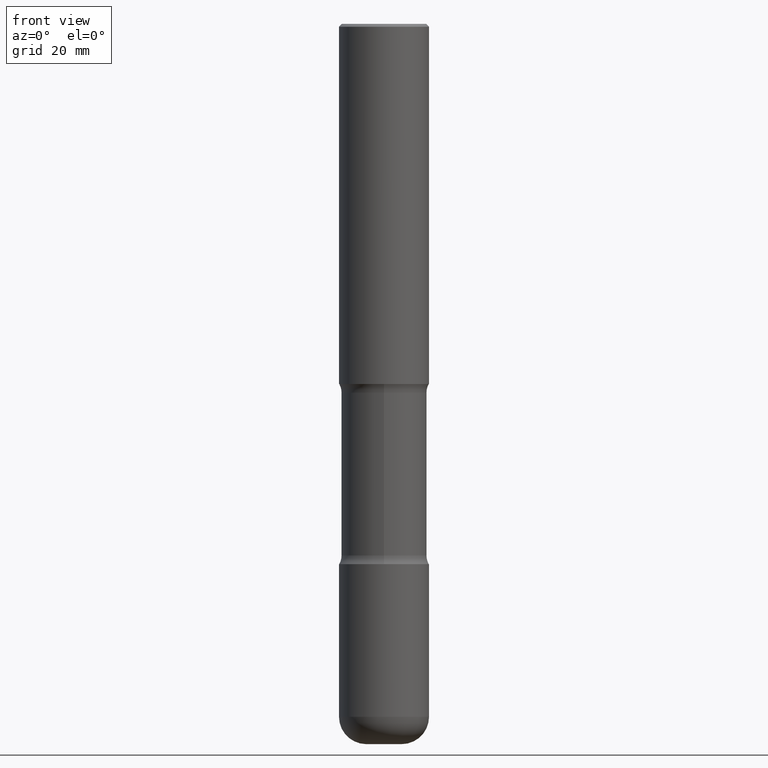
[diagram: clean part render]
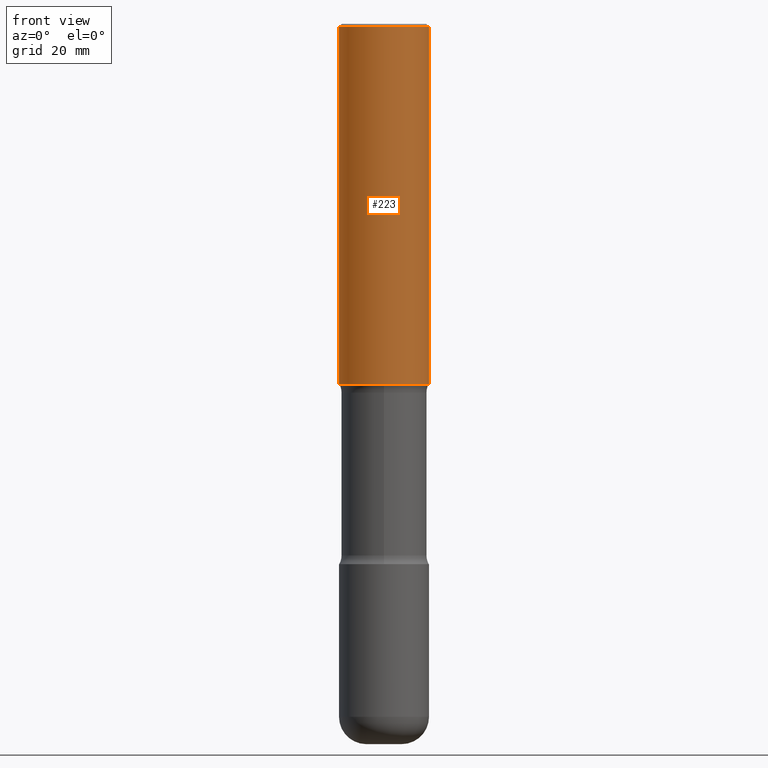
[diagram: same view with one face highlighted and labeled with its STEP entity id]
A machine part, front view. The second image highlights one B-rep face of the part: STEP entity #223.
In plain terms, the highlighted cylindrical surface (partial cylindrical patch) has radius 7.9375 mm, axis along (-0, 0, 1).
Its self-contained STEP definition (entity closure, byte-faithful):
#8 = CARTESIAN_POINT ( 'NONE',  ( 0.3125000000000002220, -1.091087918388482329E-14, -2.499999999999999556 ) ) ;
#36 = AXIS2_PLACEMENT_3D ( 'NONE', #272, #315, #94 ) ;
#61 = VECTOR ( 'NONE', #289, 39.37007874015748143 ) ;
#75 = LINE ( 'NONE', #559, #525 ) ;
#81 = EDGE_LOOP ( 'NONE', ( #132, #401, #228, #243 ) ) ;
#94 = DIRECTION ( 'NONE',  ( 1.000000000000000000, -6.982962677686266711E-15, 0.000000000000000000 ) ) ;
#99 = VERTEX_POINT ( 'NONE', #354 ) ;
#108 = EDGE_CURVE ( 'NONE', #345, #99, #75, .T. ) ;
#114 = LINE ( 'NONE', #125, #61 ) ;
#125 = CARTESIAN_POINT ( 'NONE',  ( 0.3125000000000000000, -2.182175836776958347E-15, 1.523805242436230075E-29 ) ) ;
#132 = ORIENTED_EDGE ( 'NONE', *, *, #108, .F. ) ;
#134 = DIRECTION ( 'NONE',  ( 1.000000000000000000, -6.982962677686266711E-15, 0.000000000000000000 ) ) ;
#137 = EDGE_CURVE ( 'NONE', #99, #165, #346, .T. ) ;
#165 = VERTEX_POINT ( 'NONE', #260 ) ;
#209 = DIRECTION ( 'NONE',  ( -2.445468806185136597E-29, 3.491481338843145583E-15, 1.000000000000000000 ) ) ;
#223 = ADVANCED_FACE ( 'NONE', ( #226 ), #356, .T. ) ;
#226 = FACE_OUTER_BOUND ( 'NONE', #81, .T. ) ;
#228 = ORIENTED_EDGE ( 'NONE', *, *, #488, .T. ) ;
#243 = ORIENTED_EDGE ( 'NONE', *, *, #137, .F. ) ;
#246 = EDGE_CURVE ( 'NONE', #345, #539, #371, .T. ) ;
#257 = AXIS2_PLACEMENT_3D ( 'NONE', #390, #351, #134 ) ;
#260 = CARTESIAN_POINT ( 'NONE',  ( 0.3124999999999998890, -2.213735251080466123E-15, -0.02000000000000006981 ) ) ;
#272 = CARTESIAN_POINT ( 'NONE',  ( 4.890937612370289799E-31, -6.982962677686315028E-17, -0.02000000000000006981 ) ) ;
#289 = DIRECTION ( 'NONE',  ( -2.445468806185136877E-29, 3.491481338843145188E-15, 1.000000000000000000 ) ) ;
#315 = DIRECTION ( 'NONE',  ( -2.445468806185136597E-29, 3.491481338843145583E-15, 1.000000000000000000 ) ) ;
#341 = CARTESIAN_POINT ( 'NONE',  ( -0.3125000000000002220, -2.178820437692046306E-15, -2.499999999999999556 ) ) ;
#345 = VERTEX_POINT ( 'NONE', #341 ) ;
#346 = CIRCLE ( 'NONE', #36, 0.3124999999999998890 ) ;
#351 = DIRECTION ( 'NONE',  ( -2.445468806185136597E-29, 3.491481338843145583E-15, 1.000000000000000000 ) ) ;
#354 = CARTESIAN_POINT ( 'NONE',  ( -0.3124999999999998890, 2.112346210000094260E-15, -0.02000000000000006981 ) ) ;
#356 = CYLINDRICAL_SURFACE ( 'NONE', #437, 0.3125000000000000000 ) ;
#371 = CIRCLE ( 'NONE', #257, 0.3125000000000002220 ) ;
#390 = CARTESIAN_POINT ( 'NONE',  ( 6.113672015462840371E-29, -8.728703347107863365E-15, -2.499999999999999556 ) ) ;
#401 = ORIENTED_EDGE ( 'NONE', *, *, #246, .T. ) ;
#426 = CARTESIAN_POINT ( 'NONE',  ( 0.000000000000000000, 0.000000000000000000, 0.000000000000000000 ) ) ;
#437 = AXIS2_PLACEMENT_3D ( 'NONE', #426, #209, #549 ) ;
#442 = DIRECTION ( 'NONE',  ( -2.445468806185136877E-29, 3.491481338843145188E-15, 1.000000000000000000 ) ) ;
#488 = EDGE_CURVE ( 'NONE', #539, #165, #114, .T. ) ;
#525 = VECTOR ( 'NONE', #442, 39.37007874015748143 ) ;
#539 = VERTEX_POINT ( 'NONE', #8 ) ;
#549 = DIRECTION ( 'NONE',  ( 1.000000000000000000, -6.982962677686266711E-15, 4.876176775795936353E-29 ) ) ;
#559 = CARTESIAN_POINT ( 'NONE',  ( -0.3125000000000000000, 2.220446049250313081E-15, -1.537167215704658232E-29 ) ) ;